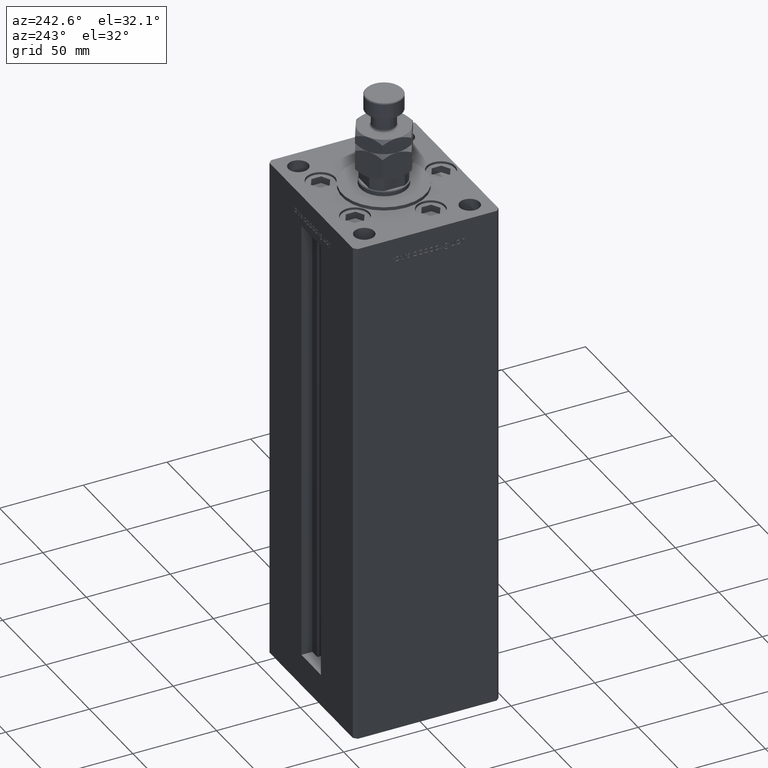
[diagram: clean part render]
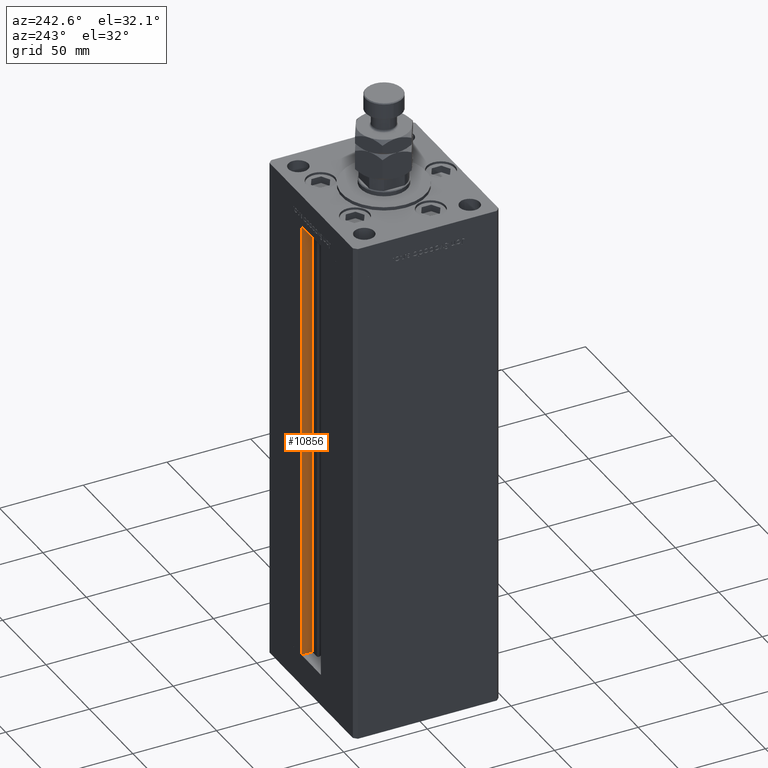
[diagram: same view with one face highlighted and labeled with its STEP entity id]
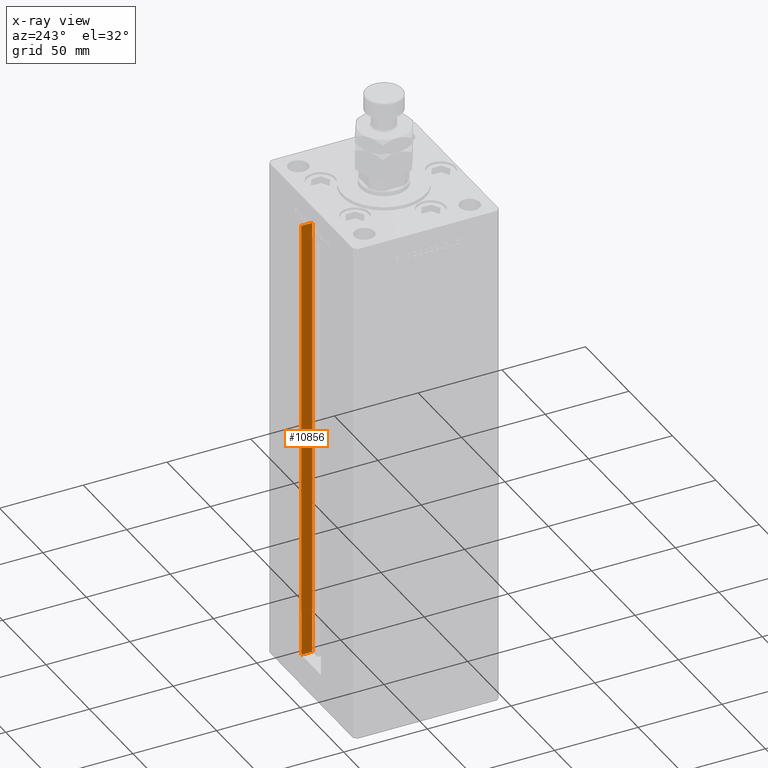
[diagram: x-ray of the same camera — body ghosted, the highlighted face saturated]
A machine part, auxiliary view. The second image highlights one B-rep face of the part: STEP entity #10856.
The next image is the same camera in x-ray: the body ghosted, the highlighted face saturated — about 0% of this face is hidden behind the body in this view.
In plain terms, the highlighted planar face has unit normal (1, 0, 0).
Its self-contained STEP definition (entity closure, byte-faithful):
#2793 = DIRECTION ( 'NONE',  ( 0.000000000000000000, 0.000000000000000000, -1.000000000000000000 ) ) ;
#3149 = CARTESIAN_POINT ( 'NONE',  ( 11.24999999999999822, 36.99999999999999289, 268.5000000000000000 ) ) ;
#3173 = CARTESIAN_POINT ( 'NONE',  ( 11.24999999999999822, 36.99999999999999289, 0.000000000000000000 ) ) ;
#6119 = CARTESIAN_POINT ( 'NONE',  ( 11.24999999999999822, 43.50000000000000000, 0.000000000000000000 ) ) ;
#9196 = LINE ( 'NONE', #6119, #40772 ) ;
#10856 = ADVANCED_FACE ( 'NONE', ( #23468 ), #40100, .F. ) ;
#12974 = VERTEX_POINT ( 'NONE', #53517 ) ;
#13778 = VERTEX_POINT ( 'NONE', #53798 ) ;
#14519 = ORIENTED_EDGE ( 'NONE', *, *, #44226, .F. ) ;
#15143 = DIRECTION ( 'NONE',  ( 0.000000000000000000, 1.000000000000000000, 0.000000000000000000 ) ) ;
#15307 = CARTESIAN_POINT ( 'NONE',  ( 11.24999999999999822, 36.99999999999999289, 0.000000000000000000 ) ) ;
#17859 = VECTOR ( 'NONE', #22364, 1000.000000000000000 ) ;
#21699 = DIRECTION ( 'NONE',  ( -0.000000000000000000, -0.000000000000000000, 1.000000000000000000 ) ) ;
#22130 = ORIENTED_EDGE ( 'NONE', *, *, #53618, .T. ) ;
#22194 = ORIENTED_EDGE ( 'NONE', *, *, #34749, .F. ) ;
#22364 = DIRECTION ( 'NONE',  ( -0.000000000000000000, -0.000000000000000000, 1.000000000000000000 ) ) ;
#22913 = DIRECTION ( 'NONE',  ( 1.000000000000000000, -0.000000000000000000, 0.000000000000000000 ) ) ;
#23468 = FACE_OUTER_BOUND ( 'NONE', #25995, .T. ) ;
#25995 = EDGE_LOOP ( 'NONE', ( #49956, #22194, #22130, #14519 ) ) ;
#29632 = DIRECTION ( 'NONE',  ( -0.000000000000000000, -1.000000000000000000, 0.000000000000000000 ) ) ;
#33733 = LINE ( 'NONE', #50370, #39157 ) ;
#34749 = EDGE_CURVE ( 'NONE', #36891, #12974, #39384, .T. ) ;
#36198 = AXIS2_PLACEMENT_3D ( 'NONE', #15307, #22913, #2793 ) ;
#36891 = VERTEX_POINT ( 'NONE', #47287 ) ;
#37030 = VERTEX_POINT ( 'NONE', #3149 ) ;
#38636 = EDGE_CURVE ( 'NONE', #12974, #13778, #9196, .T. ) ;
#39157 = VECTOR ( 'NONE', #29632, 1000.000000000000000 ) ;
#39384 = LINE ( 'NONE', #3173, #51236 ) ;
#40100 = PLANE ( 'NONE',  #36198 ) ;
#40772 = VECTOR ( 'NONE', #21699, 1000.000000000000000 ) ;
#41998 = CARTESIAN_POINT ( 'NONE',  ( 11.24999999999999822, 36.99999999999999289, 0.000000000000000000 ) ) ;
#44226 = EDGE_CURVE ( 'NONE', #13778, #37030, #33733, .T. ) ;
#46372 = LINE ( 'NONE', #41998, #17859 ) ;
#47287 = CARTESIAN_POINT ( 'NONE',  ( 11.24999999999999822, 36.99999999999999289, 0.000000000000000000 ) ) ;
#49956 = ORIENTED_EDGE ( 'NONE', *, *, #38636, .F. ) ;
#50370 = CARTESIAN_POINT ( 'NONE',  ( 11.24999999999999822, 0.000000000000000000, 268.5000000000000000 ) ) ;
#51236 = VECTOR ( 'NONE', #15143, 1000.000000000000000 ) ;
#53517 = CARTESIAN_POINT ( 'NONE',  ( 11.24999999999999822, 43.50000000000000000, 0.000000000000000000 ) ) ;
#53618 = EDGE_CURVE ( 'NONE', #36891, #37030, #46372, .T. ) ;
#53798 = CARTESIAN_POINT ( 'NONE',  ( 11.24999999999999112, 43.50000000000000000, 268.5000000000000000 ) ) ;